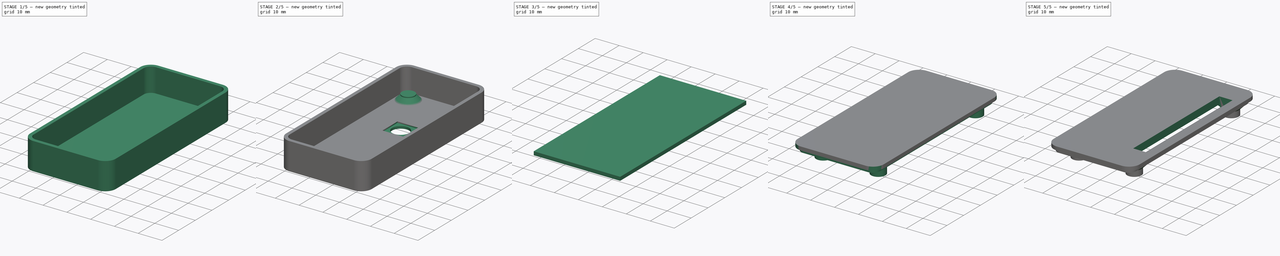
[diagram: build sequence overview — one tinted view per stage of 5, left to right]
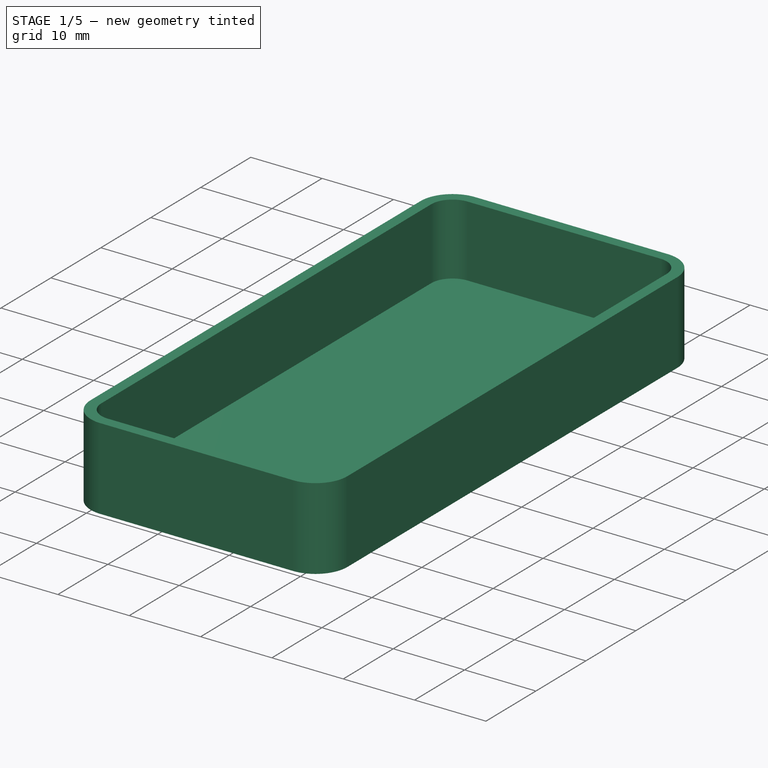
[diagram: stage 1 of 5 — iso view after this stage's code; geometry added in this stage tinted green]
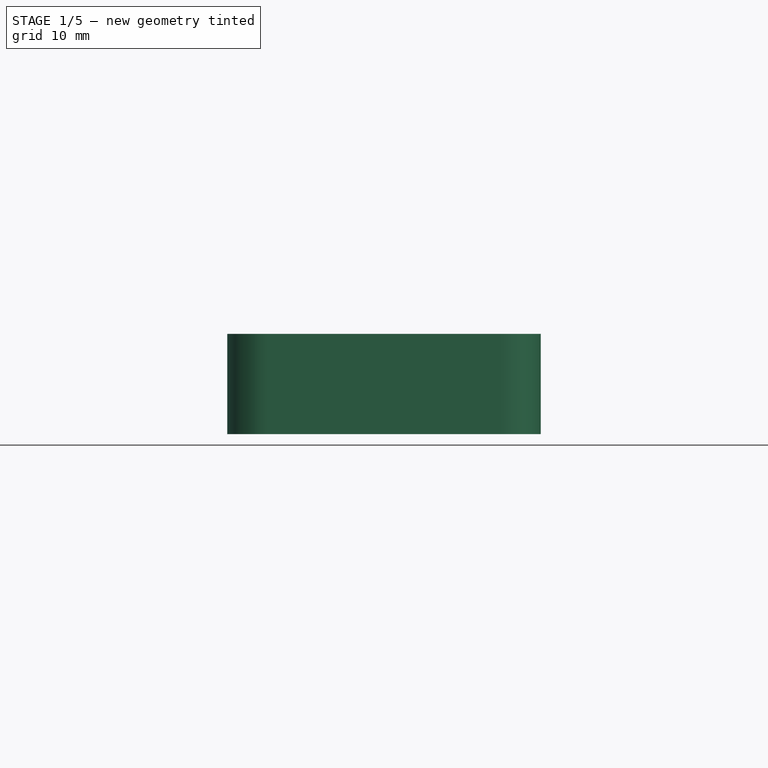
[diagram: stage 1 of 5 — front view after this stage's code; geometry added in this stage tinted green]
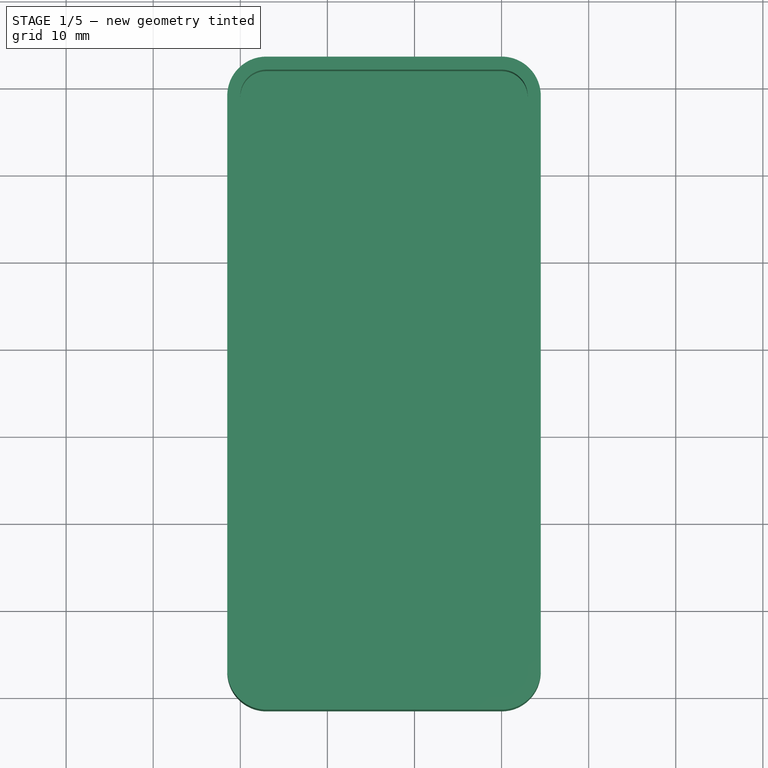
[diagram: stage 1 of 5 — top view after this stage's code; geometry added in this stage tinted green]
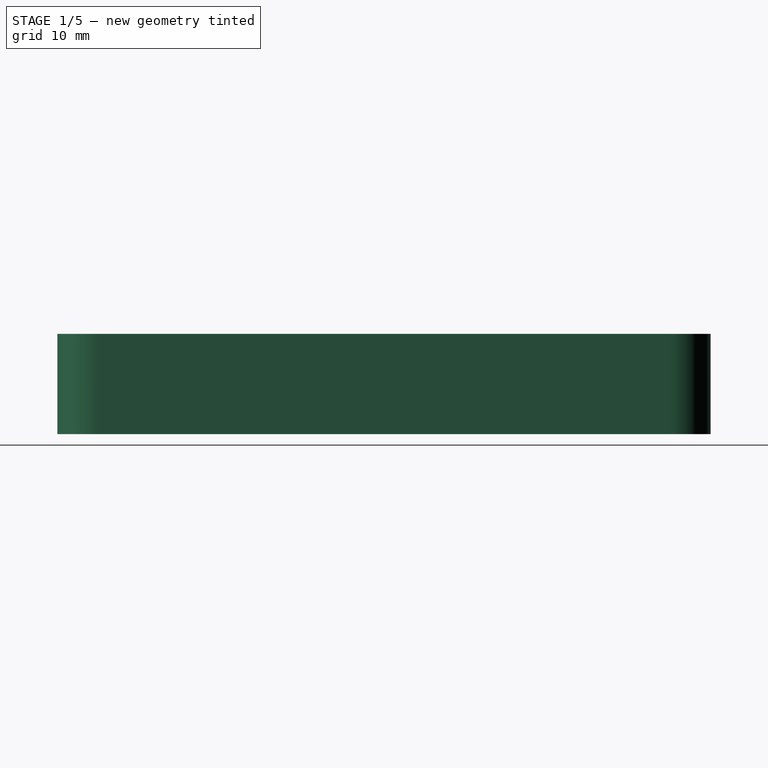
[diagram: stage 1 of 5 — right view after this stage's code; geometry added in this stage tinted green]
FCSTD DOCUMENT  (FreeCAD 0.19R23316 (Git))
Label: Raspi Zero W Camera Case
License: Creative Commons Attribution-ShareAlike
LicenseURL: http://creativecommons.org/licenses/by-sa/4.0/
objects: Sketcher::SketchObject×12, PartDesign::Pocket×6, PartDesign::Pad×5, PartDesign::Fillet×4, PartDesign::CoordinateSystem×3, PartDesign::Body×3, App::DocumentObjectGroup×2, PartDesign::Chamfer×2, App::FeaturePython×1, PartDesign::Thickness×1, PartDesign::Hole×1, PartDesign::ShapeBinder×1, PartDesign::FeatureBase×1, App::Part×1
note: 58 computed .brp shape members not serialized (recipe doc carries the construction recipe); baked Part::Feature solids carry a one-line shape summary decoded from their .brp

FEATURE [App::DocumentObjectGroup] Parts
FEATURE [PartDesign::CoordinateSystem] LCS_Origin
  AttacherType = Attacher::AttachEngine3D
  MapMode = 2
  Support = -> [X_Axis]
FEATURE [App::DocumentObjectGroup] Constraints
FEATURE [App::FeaturePython] Variables  # WARN: FeaturePython — macro-defined, semantics opaque (R4)
FEATURE [PartDesign::CoordinateSystem] LCS_0
  AttacherType = Attacher::AttachEngine3D
  MapMode = 2
  Support = -> [X_Axis001]
FEATURE [Sketcher::SketchObject] Sketch
  MapMode = 5
  Support = -> [XY_Plane001]
  sketch-geometry (4):
    g0: LineSegment StartX=0 StartY=0 StartZ=0 EndX=33 EndY=0 EndZ=0
    g1: LineSegment StartX=33 StartY=0 StartZ=0 EndX=33 EndY=72 EndZ=0
    g2: LineSegment StartX=33 StartY=72 StartZ=0 EndX=0 EndY=72 EndZ=0
    g3: LineSegment StartX=0 StartY=72 StartZ=0 EndX=0 EndY=0 EndZ=0
  constraints (11):
    c: Coincident(g0,g1)
    c: Coincident(g1,g2)
    c: Coincident(g2,g3)
    c: Coincident(g3,g0)
    c: Horizontal(g0)
    c: Horizontal(g2)
    c: Vertical(g1)
    c: Vertical(g3)
    c: Coincident(g0,g-1)
    c: DistanceY(g1,g1) = 72
    c: DistanceX(g0,g0) = 33
FEATURE [PartDesign::Pad] Pad
  Direction = (1,1,1)
  Length = 10
  Length2 = 100
  Profile = -> Sketch
  Type = 0
FEATURE [PartDesign::Thickness] Thickness
  Base = -> Pad [Face6]
  BaseFeature = -> Pad
  Intersection = false
  Join = 1
  Mode = 0
  SupportTransform = false
  Value = 1.5
FEATURE [PartDesign::Fillet] Fillet
  Base = -> Thickness [Edge8,Edge1,Edge2,Edge5]
  BaseFeature = -> Thickness
  Radius = 3
  SupportTransform = false
FEATURE [PartDesign::Fillet] Fillet001
  Base = -> Fillet [Edge29,Edge31,Edge34,Edge33]
  BaseFeature = -> Fillet
  Radius = 4.5
  SupportTransform = false
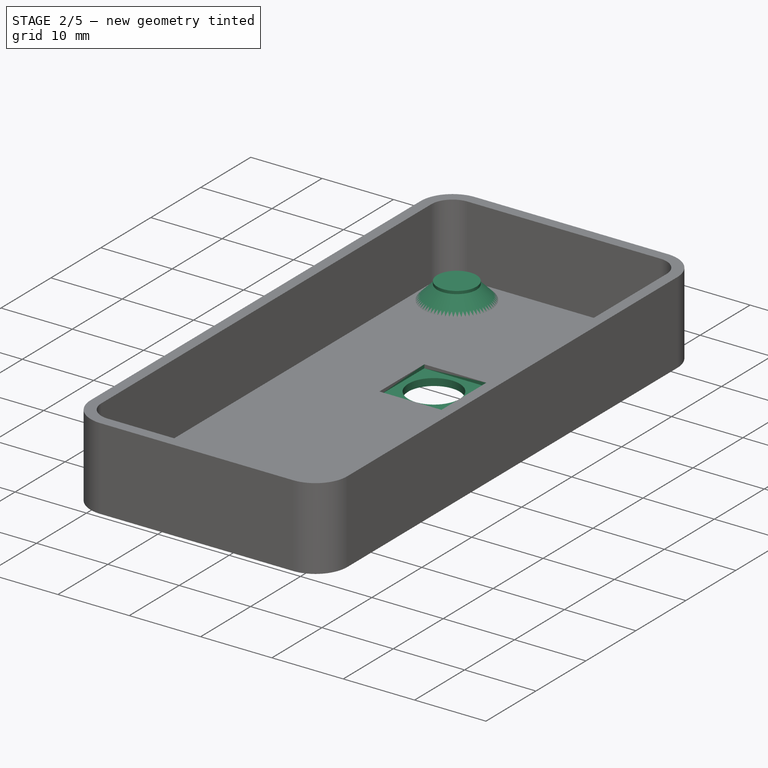
[diagram: stage 2 of 5 — iso view after this stage's code; geometry added in this stage tinted green]
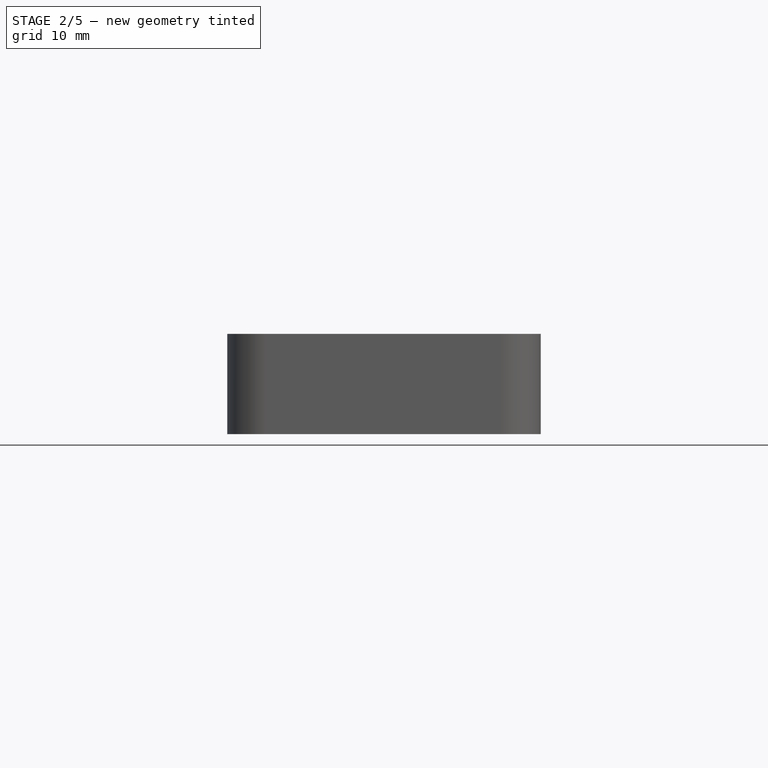
[diagram: stage 2 of 5 — front view after this stage's code; geometry added in this stage tinted green]
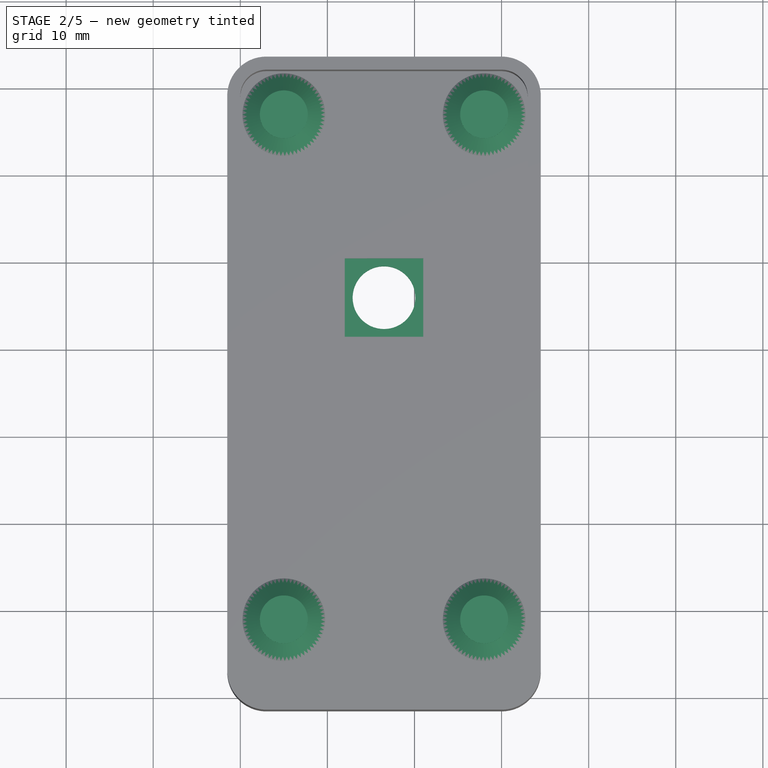
[diagram: stage 2 of 5 — top view after this stage's code; geometry added in this stage tinted green]
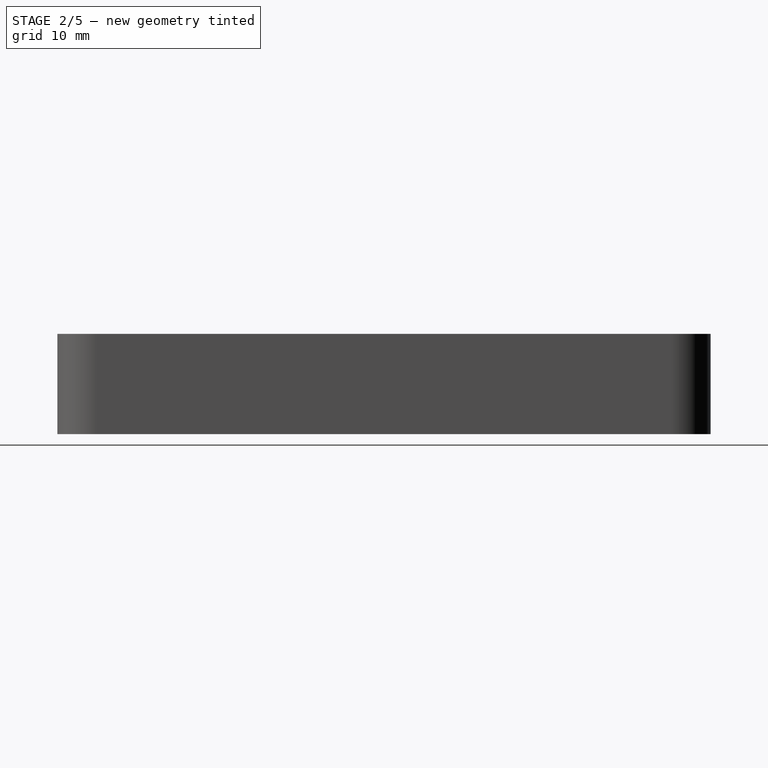
[diagram: stage 2 of 5 — right view after this stage's code; geometry added in this stage tinted green]
FEATURE [Sketcher::SketchObject] Sketch001
  ExternalGeometry = -> [Fillet001]
  MapMode = 5
  Support = -> [Fillet001]
  expr: Constraints[10] = (33 - 9) / 2
  sketch-geometry (4):
    g0: LineSegment StartX=12 StartY=50.5 StartZ=0 EndX=21 EndY=50.5 EndZ=0
    g1: LineSegment StartX=21 StartY=50.5 StartZ=0 EndX=21 EndY=41.5 EndZ=0
    g2: LineSegment StartX=21 StartY=41.5 StartZ=0 EndX=12 EndY=41.5 EndZ=0
    g3: LineSegment StartX=12 StartY=41.5 StartZ=0 EndX=12 EndY=50.5 EndZ=0
  constraints (12):
    c: Coincident(g0,g1)
    c: Coincident(g1,g2)
    c: Coincident(g2,g3)
    c: Coincident(g3,g0)
    c: Horizontal(g0)
    c: Horizontal(g2)
    c: Vertical(g1)
    c: Vertical(g3)
    c: DistanceX(g0,g0) = 9
    c: Equal(g3,g0)
    c: DistanceX(g-3,g0) = 12
    c: DistanceY(g0,g-5) = 21.5
FEATURE [PartDesign::Pocket] Pocket
  BaseFeature = -> Fillet001
  Length = 0.5
  Length2 = 100
  Profile = -> Sketch001
  Type = 0
FEATURE [Sketcher::SketchObject] Sketch002
  ExternalGeometry = -> [Pocket]
  MapMode = 5
  Placement = pos=(0,0,-0.5) rot=(0,0,1;0rad)
  Support = -> [Pocket]
  expr: Constraints[0] = 7.2 / 2
  sketch-geometry (4):
    g0: Circle CenterX=16.5 CenterY=46 CenterZ=0 NormalX=0 NormalY=0 NormalZ=1 AngleXU=0 Radius=3.6
    g1: LineSegment StartX=21 StartY=50.5 StartZ=0 EndX=12 EndY=41.5 EndZ=0
    g2: LineSegment StartX=12 StartY=50.5 StartZ=0 EndX=21 EndY=41.5 EndZ=0
    g3: GeomPoint X=16.5 Y=46 Z=0
  constraints (8):
    c: Radius(g0) = 3.6
    c: Coincident(g1,g-3)
    c: Coincident(g1,g-4)
    c: Coincident(g2,g-4)
    c: Coincident(g2,g-5)
    c: PointOnObject(g3,g1)
    c: PointOnObject(g3,g2)
    c: Coincident(g3,g0)
FEATURE [PartDesign::Pocket] Pocket001
  BaseFeature = -> Pocket
  Length = 5
  Length2 = 100
  Profile = -> Sketch002
  Type = 1
FEATURE [PartDesign::CoordinateSystem] Lens_Hole
  AttacherType = Attacher::AttachEngine3D
  MapMode = 11
  Placement = pos=(16.5,46,-0.5) rot=(0.707107,-0.707107,0;3.14159rad)
  Support = -> [Pocket001]
FEATURE [Sketcher::SketchObject] Sketch003
  ExternalGeometry = -> [Pocket001]
  MapMode = 5
  Support = -> [Pocket001]
  sketch-geometry (8):
    g0: Circle CenterX=5 CenterY=9 CenterZ=0 NormalX=0 NormalY=0 NormalZ=1 AngleXU=0 Radius=2.75
    g1: Circle CenterX=5 CenterY=67 CenterZ=0 NormalX=0 NormalY=0 NormalZ=1 AngleXU=0 Radius=2.75
    g2: Circle CenterX=28 CenterY=67 CenterZ=0 NormalX=0 NormalY=0 NormalZ=1 AngleXU=0 Radius=2.75
    g3: Circle CenterX=28 CenterY=9 CenterZ=0 NormalX=0 NormalY=0 NormalZ=1 AngleXU=0 Radius=2.75
    g4: LineSegment StartX=5 StartY=67 StartZ=0 EndX=28 EndY=67 EndZ=0
    g5: LineSegment StartX=28 StartY=67 StartZ=0 EndX=28 EndY=9 EndZ=0
    g6: LineSegment StartX=28 StartY=9 StartZ=0 EndX=5 EndY=9 EndZ=0
    g7: LineSegment StartX=5 StartY=9 StartZ=0 EndX=5 EndY=67 EndZ=0
  constraints (20):
    c: Coincident(g4,g5)
    c: Coincident(g5,g6)
    c: Coincident(g6,g7)
    c: Coincident(g7,g4)
    c: Horizontal(g4)
    c: Horizontal(g6)
    c: Vertical(g5)
    c: Vertical(g7)
    c: DistanceX(g4,g4) = 23
    c: DistanceY(g5,g5) = 58
    c: DistanceX(g-3,g4) = 5
    c: DistanceY(g4,g-4) = 5
    c: Coincident(g1,g4)
    c: Coincident(g2,g4)
    c: Coincident(g0,g6)
    c: Coincident(g3,g5)
    c: Diameter(g0) = 5.5
    c: Equal(g0,g3)
    c: Equal(g1,g0)
    c: Equal(g0,g2)
FEATURE [PartDesign::Pad] Pad001
  BaseFeature = -> Pocket001
  Direction = (1,1,1)
  Length = 2.4
  Length2 = 100
  Profile = -> Sketch003
  Type = 0
FEATURE [PartDesign::Chamfer] Chamfer
  Angle = 45
  Base = -> Pad001 [Edge52,Edge57,Edge50,Edge51]
  BaseFeature = -> Pad001
  ChamferType = 0
  FlipDirection = false
  Size = 2
  Size2 = 1
  SupportTransform = false
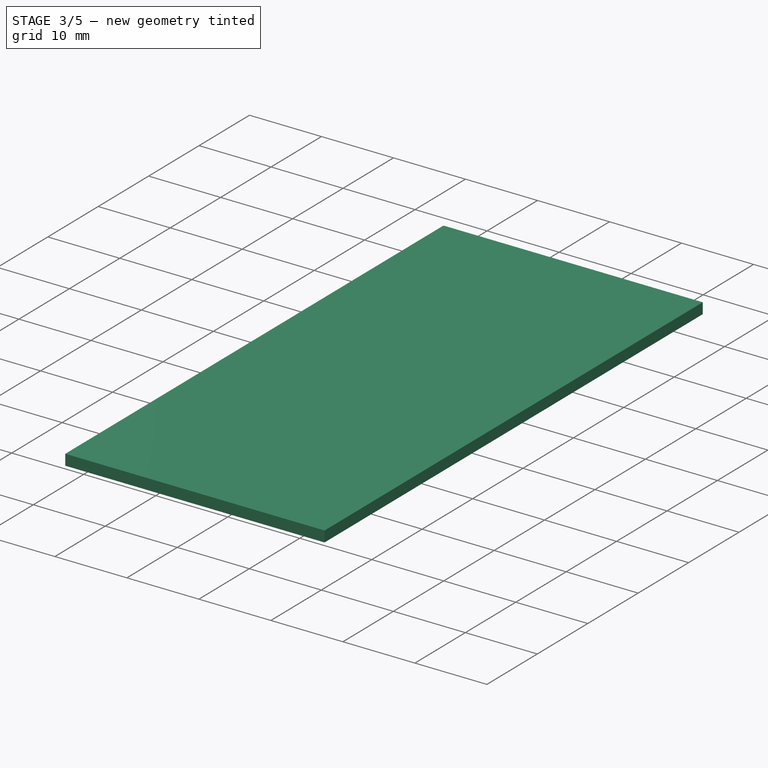
[diagram: stage 3 of 5 — iso view after this stage's code; geometry added in this stage tinted green]
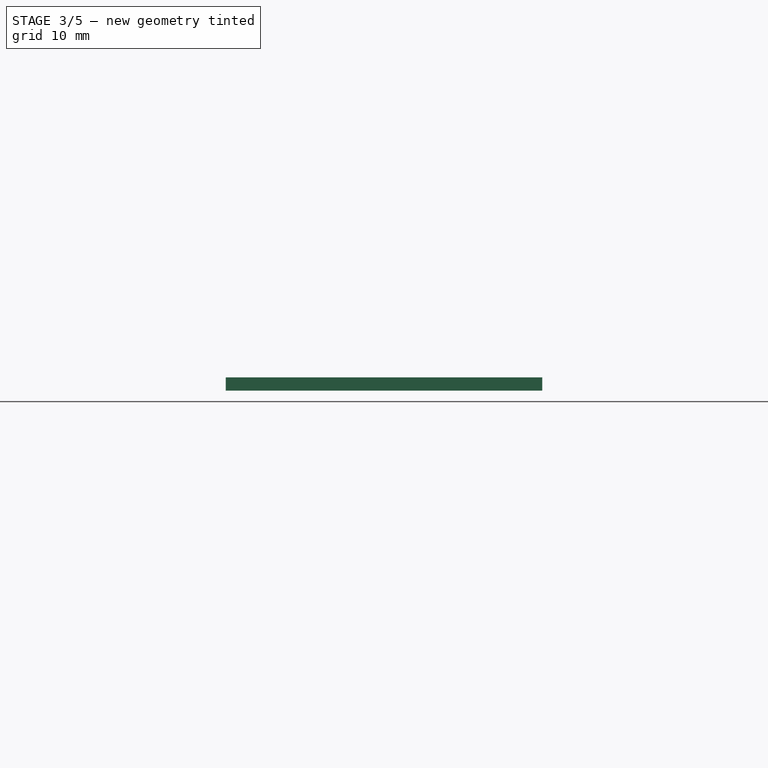
[diagram: stage 3 of 5 — front view after this stage's code; geometry added in this stage tinted green]
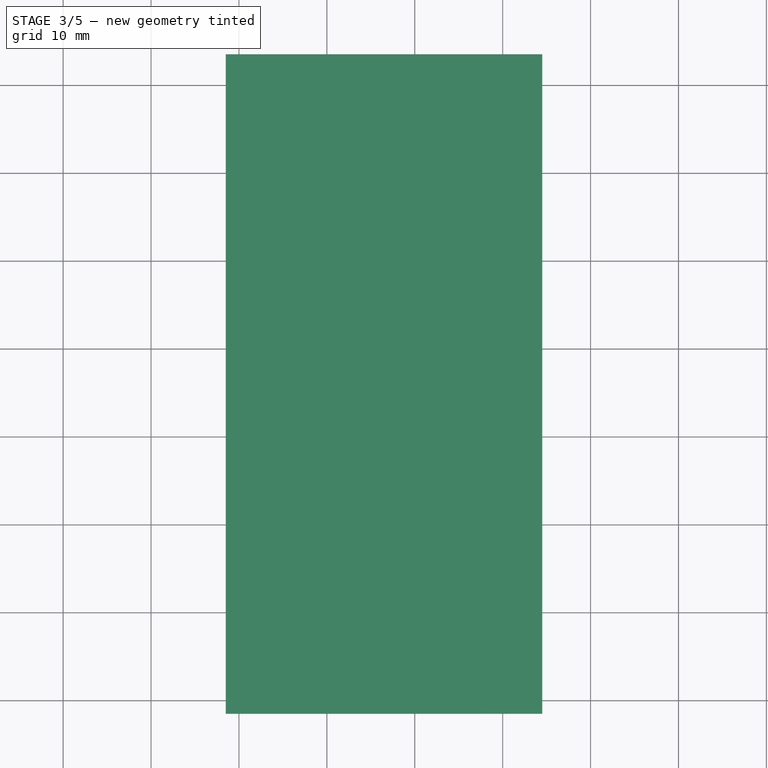
[diagram: stage 3 of 5 — top view after this stage's code; geometry added in this stage tinted green]
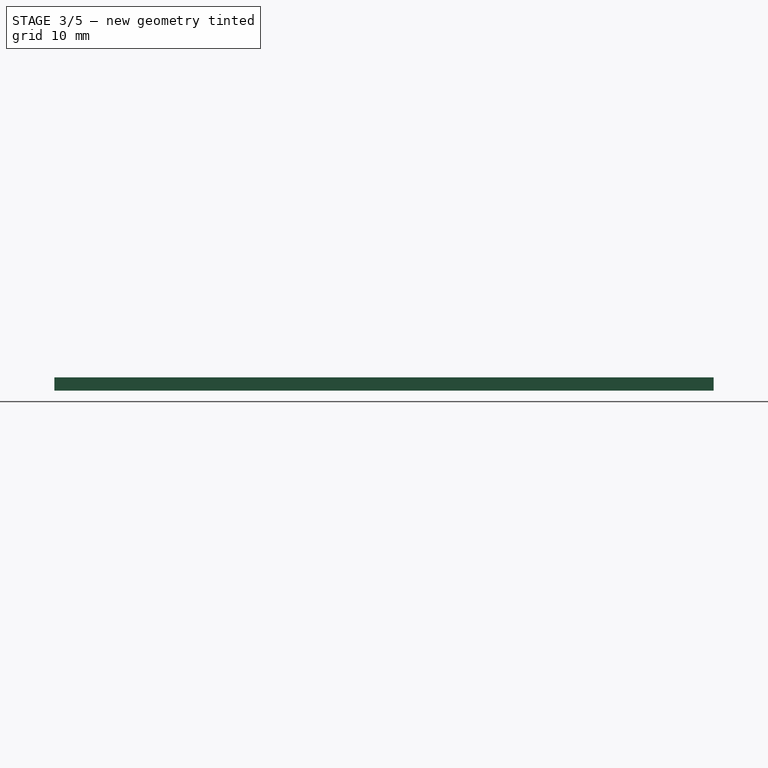
[diagram: stage 3 of 5 — right view after this stage's code; geometry added in this stage tinted green]
FEATURE [Sketcher::SketchObject] Sketch004
  ExternalGeometry = -> [Chamfer]
  MapMode = 5
  Placement = pos=(0,0,-1.5) rot=(1,0,0;3.14159rad)
  Support = -> [Chamfer]
  sketch-geometry (4):
    g0: Circle CenterX=28 CenterY=-9 CenterZ=0 NormalX=0 NormalY=0 NormalZ=1 AngleXU=0 Radius=1.25
    g1: Circle CenterX=5 CenterY=-9 CenterZ=0 NormalX=0 NormalY=0 NormalZ=1 AngleXU=0 Radius=1.25
    g2: Circle CenterX=28 CenterY=-67 CenterZ=0 NormalX=0 NormalY=0 NormalZ=1 AngleXU=0 Radius=1.25
    g3: Circle CenterX=5 CenterY=-67 CenterZ=0 NormalX=0 NormalY=0 NormalZ=1 AngleXU=0 Radius=1.25
  constraints (8):
    c: Coincident(g0,g-5)
    c: Coincident(g2,g-3)
    c: Coincident(g3,g-4)
    c: Coincident(g-6,g1)
    c: Equal(g0,g1)
    c: Equal(g0,g2)
    c: Equal(g0,g3)
    c: Diameter(g0) = 2.5
FEATURE [PartDesign::Hole] Hole
  BaseFeature = -> Chamfer
  Depth = 25
  DepthType = 1
  Diameter = 2.2
  DrillPoint = 0
  DrillPointAngle = 118
  HoleCutCountersinkAngle = 90
  HoleCutDepth = 2.1
  HoleCutDiameter = 4.3
  HoleCutType = 1
  ModelActualThread = false
  Profile = -> Sketch004
  Tapered = false
  TaperedAngle = 90
  ThreadAngle = 0
  ThreadClass = 0
  ThreadCutOffInner = 0
  ThreadCutOffOuter = 0
  ThreadDirection = 0
  ThreadFit = 1
  ThreadPitch = 0
  ThreadSize = 6
  ThreadType = 1
  Threaded = false
FEATURE [Sketcher::SketchObject] Sketch005
  ExternalGeometry = -> [Hole]
  MapMode = 5
  Placement = pos=(-1.5,0,0) rot=(0.57735,-0.57735,-0.57735;2.0944rad)
  Support = -> [Hole]
  expr: Constraints[11] = 24 - 2.2 / 2 + 0.5
  expr: Constraints[12] = 1.6 - 0.5
  sketch-geometry (4):
    g0: LineSegment StartX=-33.5 StartY=7.5 StartZ=0 EndX=-24.5 EndY=7.5 EndZ=0
    g1: LineSegment StartX=-24.5 StartY=7.5 StartZ=0 EndX=-24.5 EndY=3.5 EndZ=0
    g2: LineSegment StartX=-24.5 StartY=3.5 StartZ=0 EndX=-33.5 EndY=3.5 EndZ=0
    g3: LineSegment StartX=-33.5 StartY=3.5 StartZ=0 EndX=-33.5 EndY=7.5 EndZ=0
  constraints (13):
    c: Coincident(g0,g1)
    c: Coincident(g1,g2)
    c: Coincident(g2,g3)
    c: Coincident(g3,g0)
    c: Horizontal(g0)
    c: Horizontal(g2)
    c: Vertical(g1)
    c: Vertical(g3)
    c: DistanceX(g0,g0) = 9
    c: DistanceY(g3,g3) = 4
    c: DistanceX(g-3,g-3) = 2.2
    c: DistanceX(g0,g-3) = 23.4
    c: DistanceY(g-3,g1) = 1.1
FEATURE [PartDesign::Pocket] Pocket002
  BaseFeature = -> Hole
  Length = 0
  Length2 = 100
  Profile = -> Sketch005
  Type = 3
  UpToFace = -> Hole [Face6]
FEATURE [Sketcher::SketchObject] Sketch006
  ExternalGeometry = -> [Pocket002]
  MapMode = 5
  Placement = pos=(0,73.5,0) rot=(0,0.707107,0.707107;3.14159rad)
  Support = -> [Pocket002]
  sketch-geometry (4):
    g0: LineSegment StartX=-24.85 StartY=6.5 StartZ=0 EndX=-11.85 EndY=6.5 EndZ=0
    g1: LineSegment StartX=-11.85 StartY=6.5 StartZ=0 EndX=-11.85 EndY=3.5 EndZ=0
    g2: LineSegment StartX=-11.85 StartY=3.5 StartZ=0 EndX=-24.85 EndY=3.5 EndZ=0
    g3: LineSegment StartX=-24.85 StartY=3.5 StartZ=0 EndX=-24.85 EndY=6.5 EndZ=0
  constraints (12):
    c: Coincident(g0,g1)
    c: Coincident(g1,g2)
    c: Coincident(g2,g3)
    c: Coincident(g3,g0)
    c: Horizontal(g0)
    c: Horizontal(g2)
    c: Vertical(g1)
    c: Vertical(g3)
    c: DistanceX(g0,g0) = 13
    c: DistanceY(g1,g1) = 3
    c: DistanceX(g0,g-4) = 5.75
    c: DistanceY(g-4,g1) = 1.1
FEATURE [PartDesign::Pocket] Pocket003
  BaseFeature = -> Pocket002
  Length = 0
  Length2 = 100
  Profile = -> Sketch006
  Type = 3
  UpToFace = -> Pocket002 [Face10]
FEATURE [PartDesign::Body] Bottom
  Group = -> [LCS_0,Sketch,Pad,Thickness,Fillet,Fillet001,Sketch001,Pocket,Sketch002,Pocket001,Sketch003,Pad001,Chamfer,Sketch004,Hole,Sketch005,Pocket002,Sketch006,Pocket003]
  Origin = -> Origin001
  Tip = -> Pocket003
FEATURE [PartDesign::ShapeBinder] CopyPocket003
  Support = -> [Pocket003]
  TraceSupport = false
FEATURE [Sketcher::SketchObject] Sketch007
  MapMode = 5
  Placement = pos=(0,0,10) rot=(0,0,1;0rad)
  Support = -> [CopyPocket003]
  sketch-geometry (4):
    g0: LineSegment StartX=-1.5 StartY=-1.5 StartZ=0 EndX=34.5 EndY=-1.5 EndZ=0
    g1: LineSegment StartX=34.5 StartY=-1.5 StartZ=0 EndX=34.5 EndY=73.5 EndZ=0
    g2: LineSegment StartX=34.5 StartY=73.5 StartZ=0 EndX=-1.5 EndY=73.5 EndZ=0
    g3: LineSegment StartX=-1.5 StartY=73.5 StartZ=0 EndX=-1.5 EndY=-1.5 EndZ=0
  constraints (12):
    c: Coincident(g0,g1)
    c: Coincident(g1,g2)
    c: Coincident(g2,g3)
    c: Coincident(g3,g0)
    c: Horizontal(g0)
    c: Horizontal(g2)
    c: Vertical(g1)
    c: Vertical(g3)
    c: DistanceX(g2,g2) = 36
    c: DistanceY(g1,g1) = 75
    c: DistanceX(g0,g-1) = 1.5
    c: DistanceY(g0,g-1) = 1.5
FEATURE [PartDesign::Pad] Pad002
  Direction = (1,1,1)
  Length = 1.5
  Length2 = 100
  Profile = -> Sketch007
  Type = 0
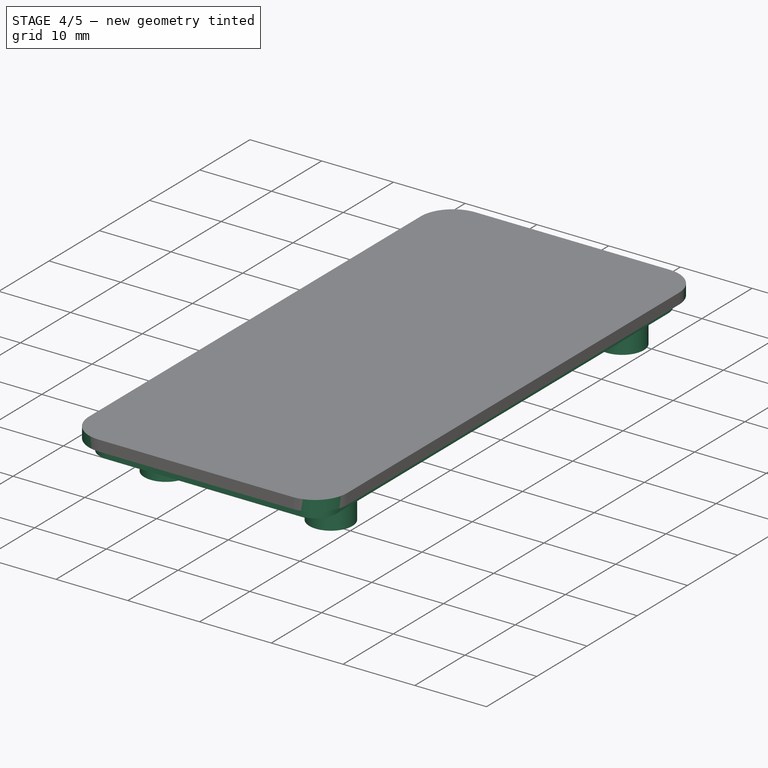
[diagram: stage 4 of 5 — iso view after this stage's code; geometry added in this stage tinted green]
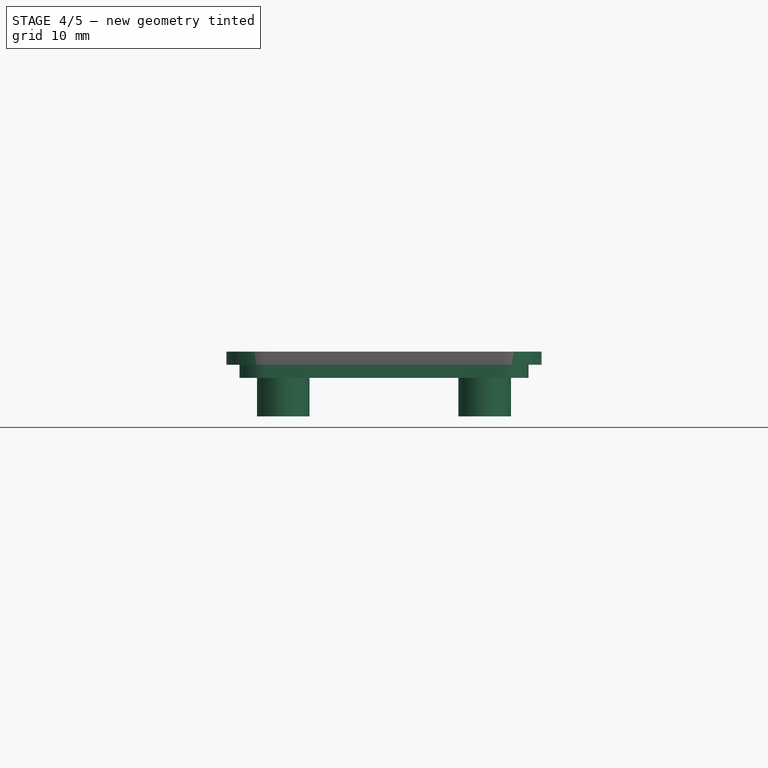
[diagram: stage 4 of 5 — front view after this stage's code; geometry added in this stage tinted green]
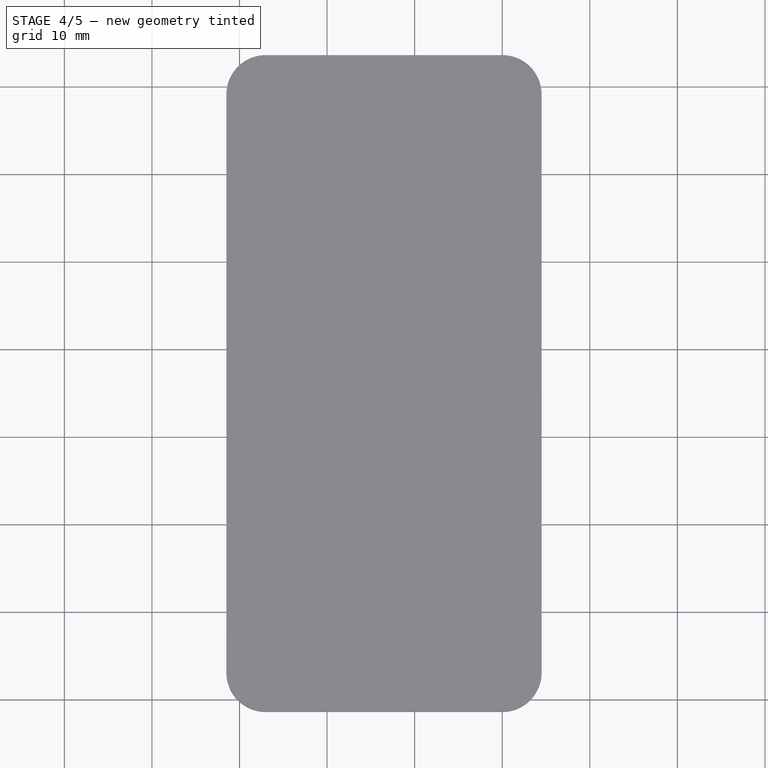
[diagram: stage 4 of 5 — top view after this stage's code; geometry added in this stage tinted green]
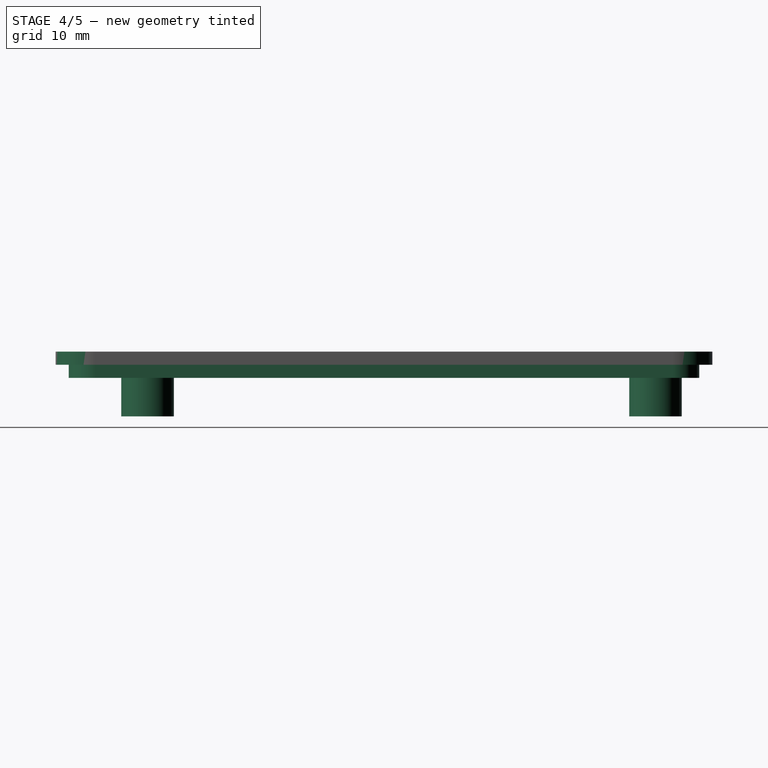
[diagram: stage 4 of 5 — right view after this stage's code; geometry added in this stage tinted green]
FEATURE [PartDesign::Fillet] Fillet002
  Base = -> Pad002 [Edge8,Edge5,Edge1,Edge2]
  BaseFeature = -> Pad002
  Radius = 4.5
  SupportTransform = false
FEATURE [Sketcher::SketchObject] Sketch008
  MapMode = 5
  Placement = pos=(0,0,10) rot=(1,0,0;3.14159rad)
  Support = -> [Fillet002]
  sketch-geometry (4):
    g0: LineSegment StartX=0 StartY=0 StartZ=0 EndX=33 EndY=0 EndZ=0
    g1: LineSegment StartX=33 StartY=0 StartZ=0 EndX=33 EndY=-72 EndZ=0
    g2: LineSegment StartX=33 StartY=-72 StartZ=0 EndX=0 EndY=-72 EndZ=0
    g3: LineSegment StartX=0 StartY=-72 StartZ=0 EndX=0 EndY=0 EndZ=0
  constraints (11):
    c: Coincident(g0,g1)
    c: Coincident(g1,g2)
    c: Coincident(g2,g3)
    c: Coincident(g3,g0)
    c: Horizontal(g0)
    c: Horizontal(g2)
    c: Vertical(g1)
    c: Vertical(g3)
    c: Coincident(g0,g-1)
    c: DistanceX(g2,g2) = 33
    c: DistanceY(g1,g1) = 72
FEATURE [PartDesign::Pad] Pad003
  BaseFeature = -> Fillet002
  Direction = (1,1,1)
  Length = 1.5
  Length2 = 100
  Profile = -> Sketch008
  Type = 0
FEATURE [PartDesign::Fillet] Fillet003
  Base = -> Pad003 [Edge30,Edge29,Edge34,Edge32]
  BaseFeature = -> Pad003
  Radius = 3
  SupportTransform = false
FEATURE [Sketcher::SketchObject] Sketch009
  ExternalGeometry = -> [CopyPocket003]
  MapMode = 5
  Placement = pos=(0,0,8.5) rot=(1,0,0;3.14159rad)
  Support = -> [Fillet003]
  sketch-geometry (4):
    g0: Circle CenterX=5 CenterY=-9 CenterZ=0 NormalX=0 NormalY=0 NormalZ=1 AngleXU=0 Radius=3
    g1: Circle CenterX=28 CenterY=-9 CenterZ=0 NormalX=0 NormalY=0 NormalZ=1 AngleXU=0 Radius=3
    g2: Circle CenterX=5 CenterY=-67 CenterZ=0 NormalX=0 NormalY=0 NormalZ=1 AngleXU=0 Radius=3
    g3: Circle CenterX=28 CenterY=-67 CenterZ=0 NormalX=0 NormalY=0 NormalZ=1 AngleXU=0 Radius=3
  constraints (8):
    c: Coincident(g0,g-3)
    c: Coincident(g1,g-4)
    c: Coincident(g2,g-6)
    c: Coincident(g3,g-5)
    c: Diameter(g0) = 6
    c: Equal(g0,g1)
    c: Equal(g0,g2)
    c: Equal(g0,g3)
FEATURE [PartDesign::Pad] Pad004
  BaseFeature = -> Fillet003
  Direction = (1,1,1)
  Length = 4.4
  Length2 = 100
  Profile = -> Sketch009
  Type = 0
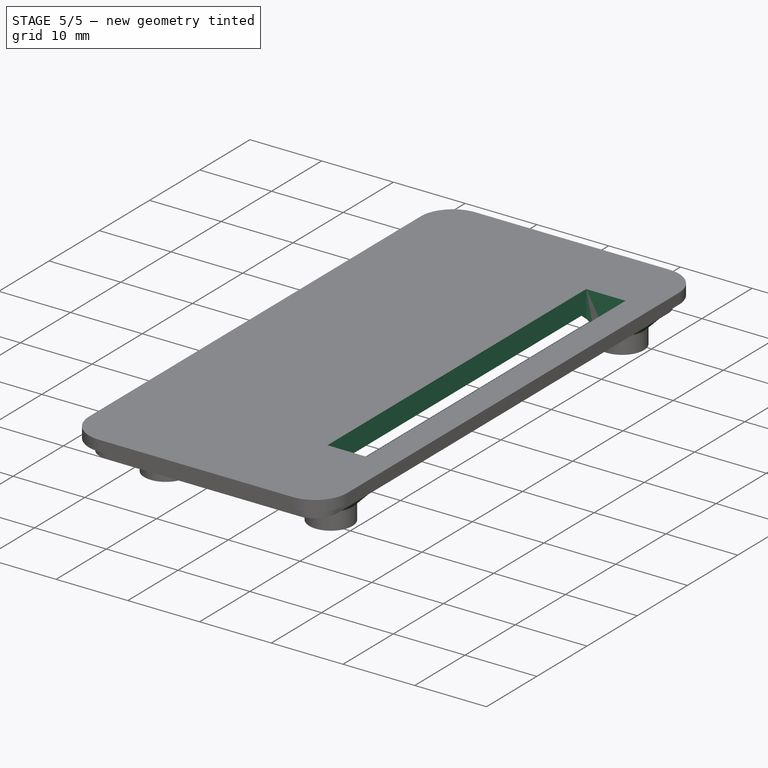
[diagram: stage 5 of 5 — iso view after this stage's code; geometry added in this stage tinted green]
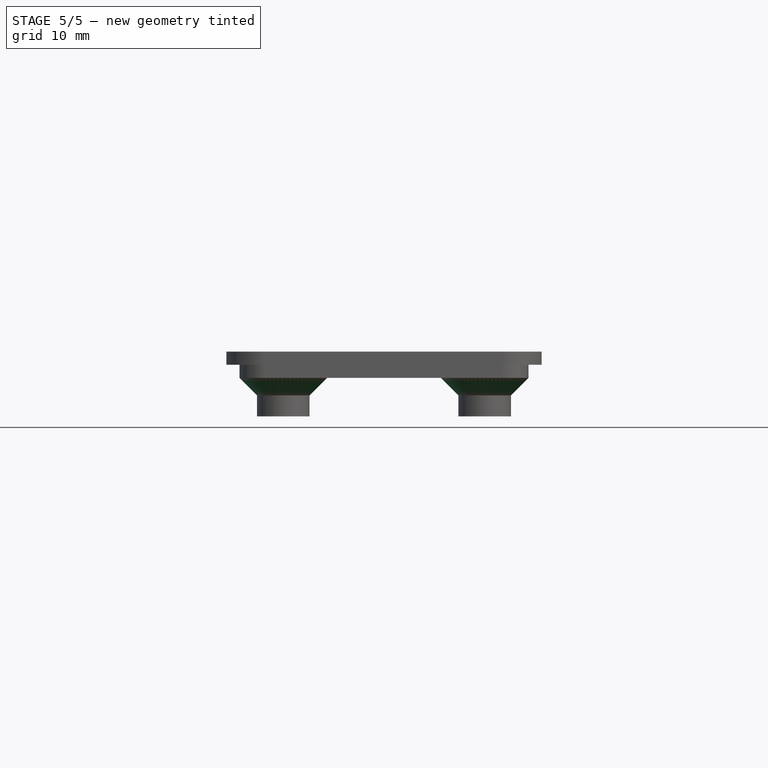
[diagram: stage 5 of 5 — front view after this stage's code; geometry added in this stage tinted green]
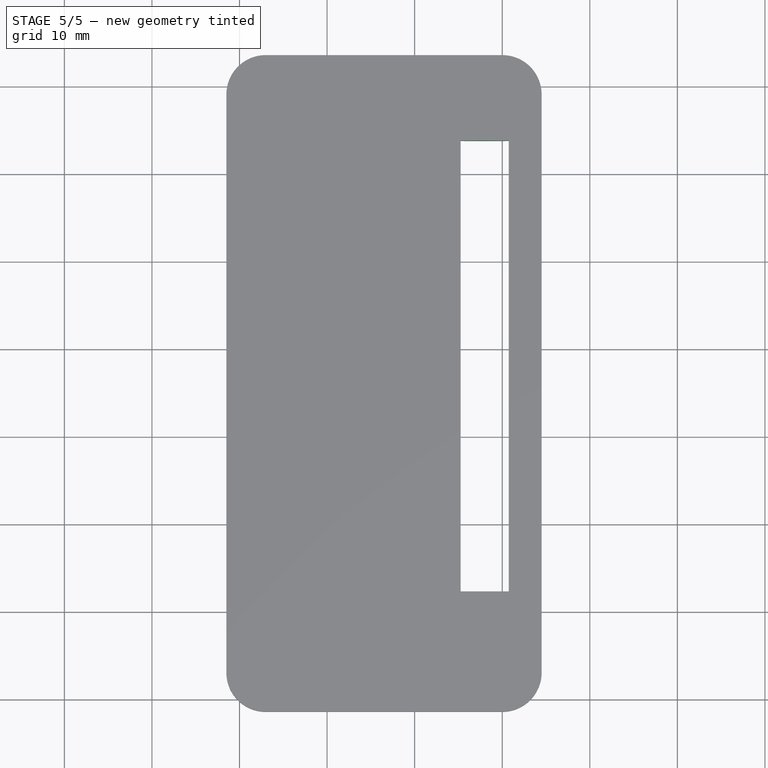
[diagram: stage 5 of 5 — top view after this stage's code; geometry added in this stage tinted green]
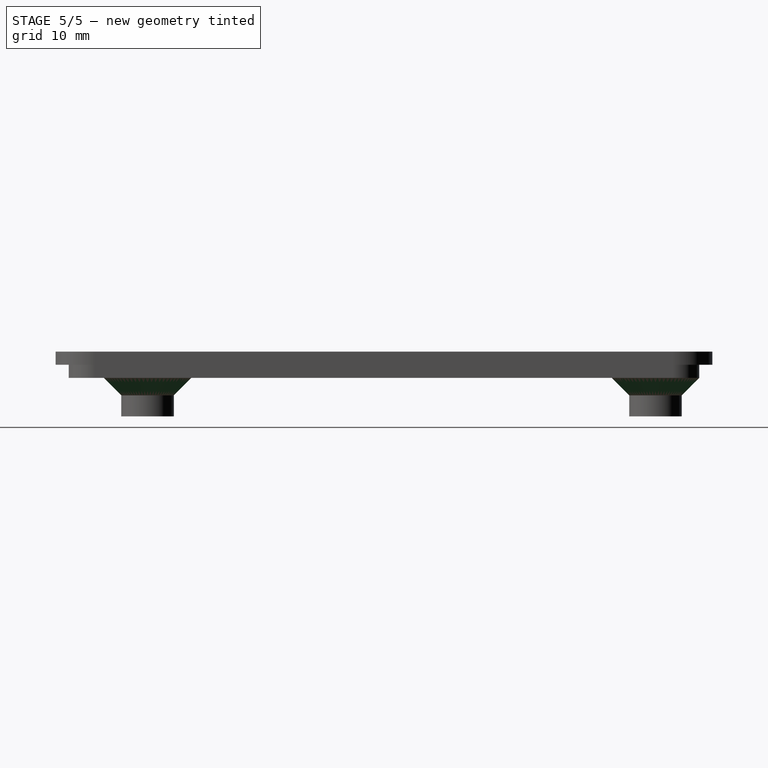
[diagram: stage 5 of 5 — right view after this stage's code; geometry added in this stage tinted green]
FEATURE [PartDesign::Chamfer] Chamfer001
  Angle = 45
  Base = -> Pad004 [Edge49,Edge50,Edge52,Edge51]
  BaseFeature = -> Pad004
  ChamferType = 0
  FlipDirection = false
  Size = 2
  Size2 = 1
  SupportTransform = false
FEATURE [Sketcher::SketchObject] Sketch010
  ExternalGeometry = -> [Chamfer001]
  MapMode = 5
  Placement = pos=(0,0,4.1) rot=(1,0,0;3.14159rad)
  Support = -> [Chamfer001]
  sketch-geometry (4):
    g0: Circle CenterX=5 CenterY=-9 CenterZ=0 NormalX=0 NormalY=0 NormalZ=1 AngleXU=0 Radius=1.5
    g1: Circle CenterX=28 CenterY=-9 CenterZ=0 NormalX=0 NormalY=0 NormalZ=1 AngleXU=0 Radius=1.5
    g2: Circle CenterX=5 CenterY=-67 CenterZ=0 NormalX=0 NormalY=0 NormalZ=1 AngleXU=0 Radius=1.5
    g3: Circle CenterX=28 CenterY=-67 CenterZ=0 NormalX=0 NormalY=0 NormalZ=1 AngleXU=0 Radius=1.5
  constraints (8):
    c: Coincident(g0,g-3)
    c: Coincident(g1,g-4)
    c: Coincident(g2,g-6)
    c: Coincident(g3,g-5)
    c: Diameter(g0) = 3
    c: Equal(g0,g1)
    c: Equal(g0,g2)
    c: Equal(g0,g3)
FEATURE [PartDesign::Pocket] Pocket004
  BaseFeature = -> Chamfer001
  Length = 6
  Length2 = 100
  Profile = -> Sketch010
  Type = 0
FEATURE [PartDesign::Body] Body  label="Top"
  Group = -> [CopyPocket003,Sketch007,Pad002,Fillet002,Sketch008,Pad003,Fillet003,Sketch009,Pad004,Chamfer001,Sketch010,Pocket004]
  Origin = -> Origin002
  Tip = -> Pocket004
FEATURE [PartDesign::FeatureBase] Clone
  BaseFeature = -> Body
FEATURE [Sketcher::SketchObject] Sketch011
  ExternalGeometry = -> [Clone]
  MapMode = 5
  Placement = pos=(0,0,8.5) rot=(1,0,0;3.14159rad)
  Support = -> [Clone]
  sketch-geometry (7):
    g0: LineSegment StartX=25.25 StartY=-12.25 StartZ=0 EndX=30.75 EndY=-12.25 EndZ=0
    g1: LineSegment StartX=30.75 StartY=-12.25 StartZ=0 EndX=30.75 EndY=-63.75 EndZ=0
    g2: LineSegment StartX=30.75 StartY=-63.75 StartZ=0 EndX=25.25 EndY=-63.75 EndZ=0
    g3: LineSegment StartX=25.25 StartY=-63.75 StartZ=0 EndX=25.25 EndY=-12.25 EndZ=0
    g4: LineSegment StartX=28 StartY=-9 StartZ=0 EndX=28 EndY=-67 EndZ=0
    g5: LineSegment StartX=28 StartY=-9 StartZ=0 EndX=5 EndY=-9 EndZ=0
    g6: LineSegment StartX=5 StartY=-67 StartZ=0 EndX=28 EndY=-67 EndZ=0
  constraints (18):
    c: Coincident(g0,g1)
    c: Coincident(g1,g2)
    c: Coincident(g2,g3)
    c: Coincident(g3,g0)
    c: Horizontal(g0)
    c: Horizontal(g2)
    c: Vertical(g1)
    c: Vertical(g3)
    c: DistanceX(g0,g0) = 5.5
    c: DistanceY(g3,g3) = 51.5
    c: Coincident(g4,g-3)
    c: Coincident(g4,g-4)
    c: Coincident(g5,g4)
    c: Coincident(g5,g-5)
    c: Coincident(g6,g-6)
    c: Coincident(g6,g4)
    c: DistanceY(g0,g5) = 3.25
    c: DistanceX(g0,g4) = 2.75
FEATURE [PartDesign::Pocket] Pocket005
  BaseFeature = -> Clone
  Length = 5
  Length2 = 100
  Profile = -> Sketch011
  Type = 4
FEATURE [PartDesign::Body] Body001  label="Top with GPIO"
  Group = -> [Clone,Sketch011,Pocket005]
  Origin = -> Origin003
  Tip = -> Pocket005
FEATURE [App::Part] Model
  Configuration = 0
  Group = -> [LCS_Origin,Constraints,Variables,Bottom,Lens_Hole,Body,Body001]
  Origin = -> Origin
  Type = Assembly4 Model
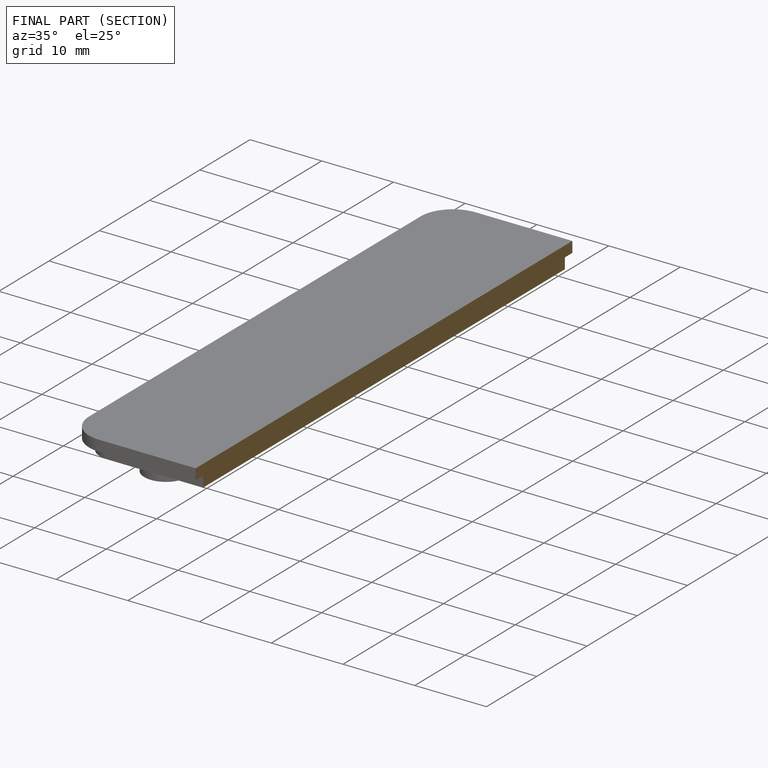
[diagram: finished part — half-section view (interior)]
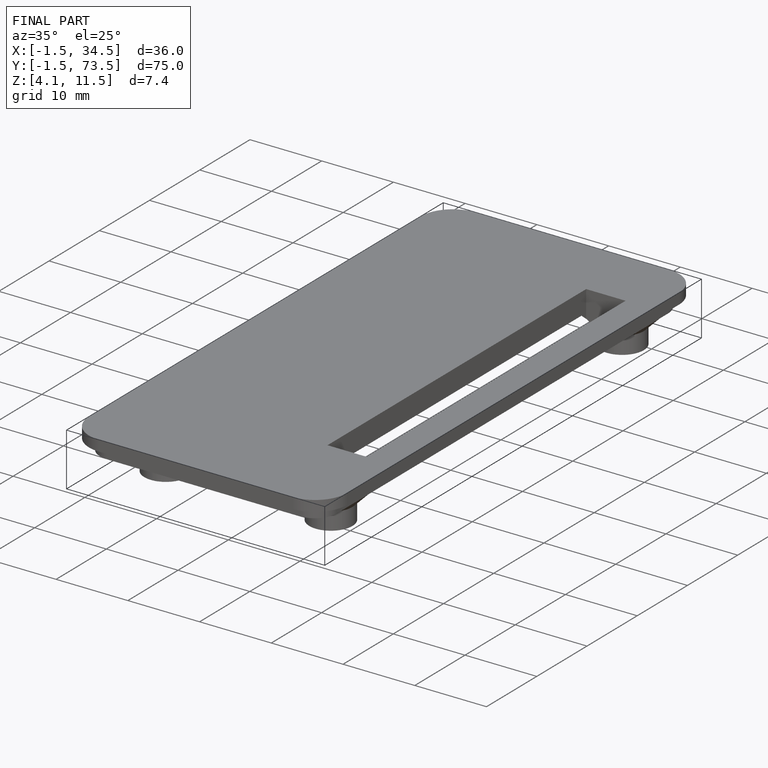
[diagram: finished part — iso view with bounding-box wireframe]
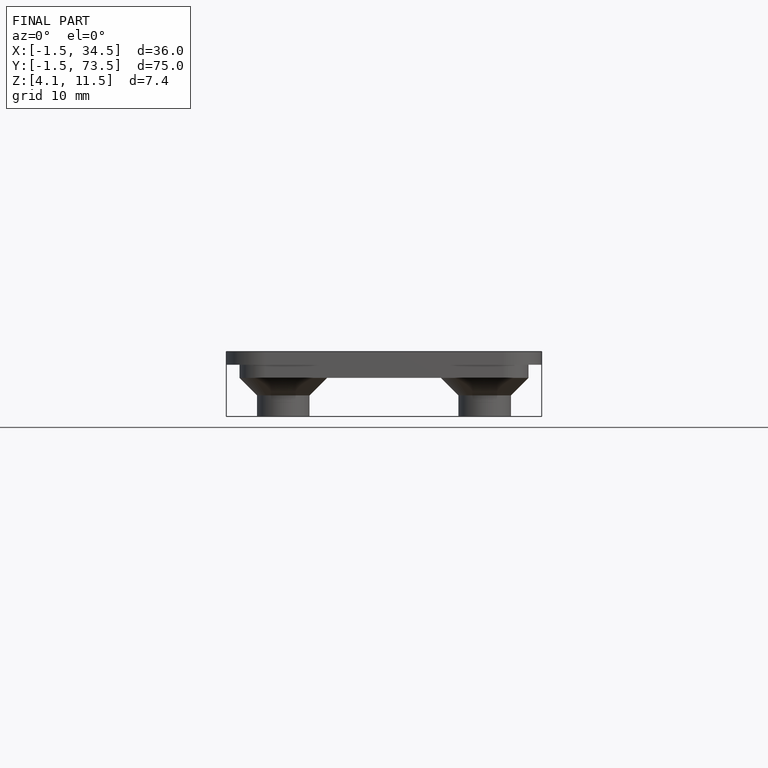
[diagram: finished part — front view with bounding-box wireframe]
